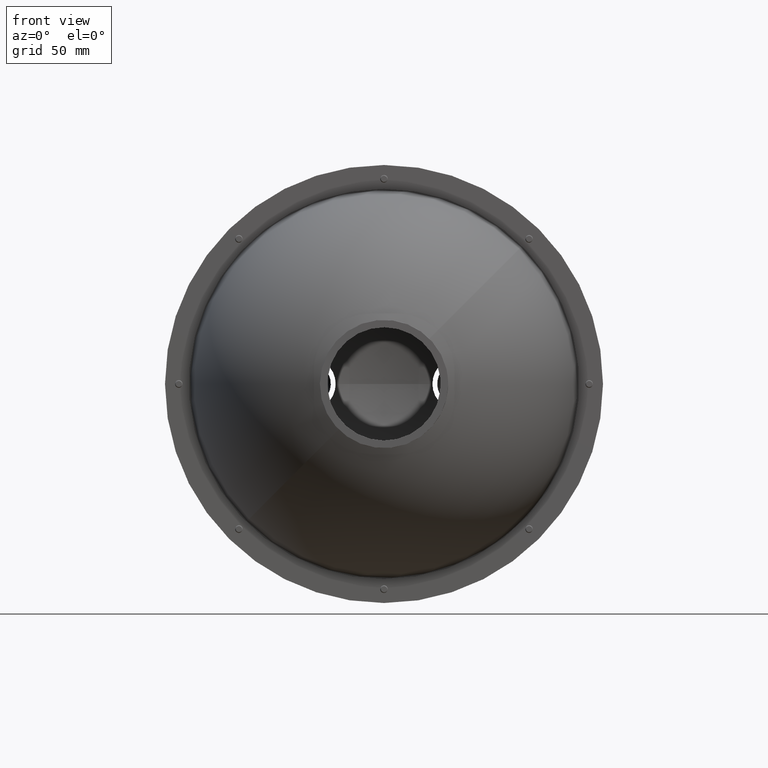
[diagram: clean part render]
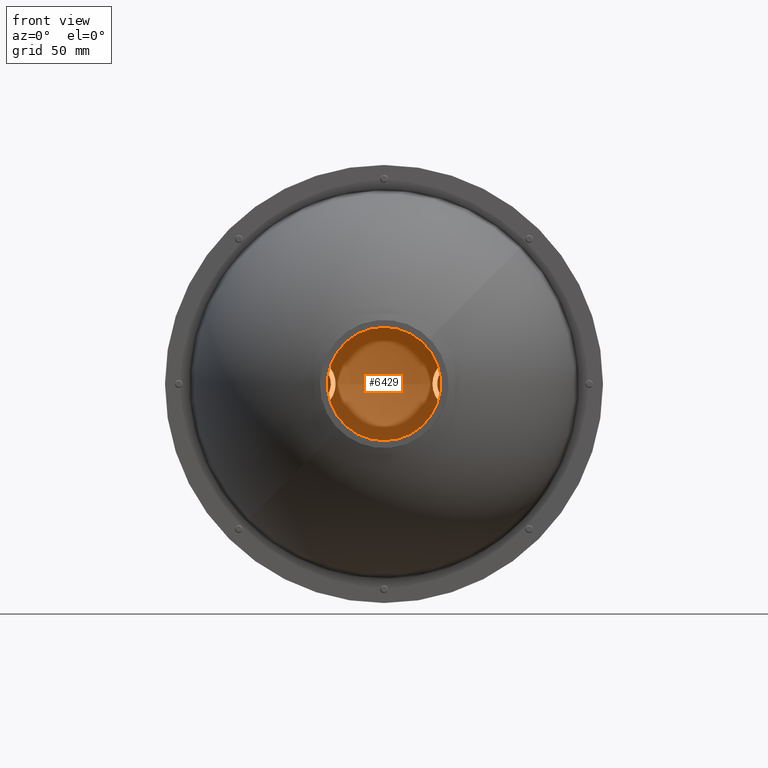
[diagram: same view with one face highlighted and labeled with its STEP entity id]
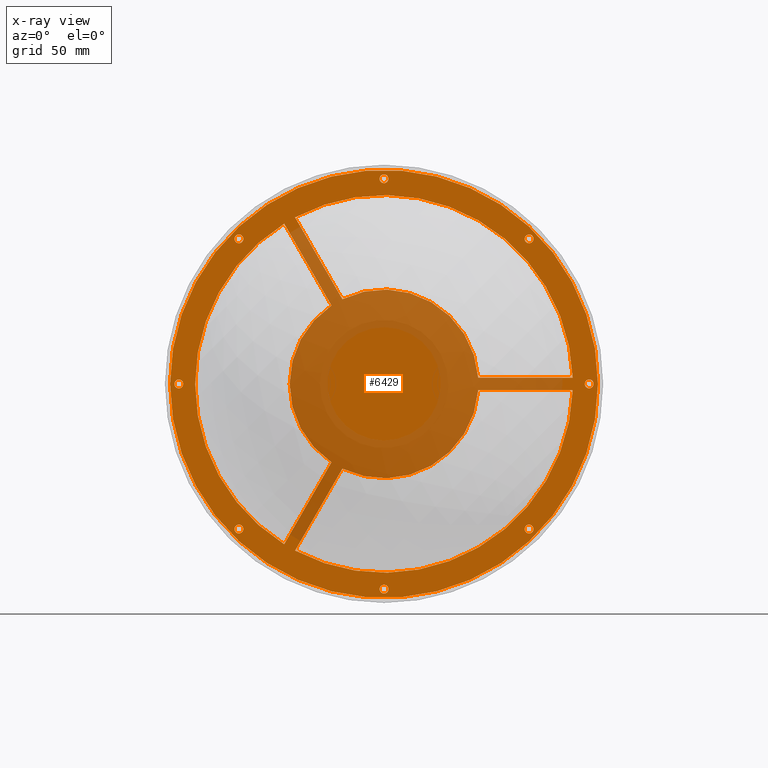
[diagram: x-ray of the same camera — body ghosted, the highlighted face saturated]
A machine part, front view. The second image highlights one B-rep face of the part: STEP entity #6429.
The next image is the same camera in x-ray: the body ghosted, the highlighted face saturated — about 33% of this face is hidden behind the body in this view.
In plain terms, the highlighted planar face has unit normal (0, 1, 0).
Its self-contained STEP definition (entity closure, byte-faithful):
#18 = EDGE_CURVE ( 'NONE', #6813, #5607, #1070, .T. ) ;
#46 = CARTESIAN_POINT ( 'NONE',  ( 6.734018949607997406, -16.21086588718419463, 81.50000000000018474 ) ) ;
#61 = VECTOR ( 'NONE', #499, 1000.000000000000000 ) ;
#71 = AXIS2_PLACEMENT_3D ( 'NONE', #5091, #878, #2150 ) ;
#92 = EDGE_LOOP ( 'NONE', ( #4031, #3357, #5070, #7390 ) ) ;
#113 = CIRCLE ( 'NONE', #3151, 37.50000000000000711 ) ;
#130 = CARTESIAN_POINT ( 'NONE',  ( 6.734018949609323457, -16.21086588718419463, -81.49999999999982947 ) ) ;
#186 = CIRCLE ( 'NONE', #6909, 37.50000000000000711 ) ;
#188 = EDGE_CURVE ( 'NONE', #3073, #5616, #4512, .T. ) ;
#222 = EDGE_CURVE ( 'NONE', #4713, #4982, #5898, .T. ) ;
#255 = DIRECTION ( 'NONE',  ( 0.000000000000000000, 1.000000000000000000, 0.000000000000000000 ) ) ;
#261 = DIRECTION ( 'NONE',  ( 0.000000000000000000, 1.000000000000000000, 0.000000000000000000 ) ) ;
#269 = CARTESIAN_POINT ( 'NONE',  ( 8.484018949608376658, -16.21086588718419463, 1.907001732220147899E-13 ) ) ;
#273 = DIRECTION ( 'NONE',  ( -1.000000000000000000, 0.000000000000000000, -3.965082230804126670E-15 ) ) ;
#289 = DIRECTION ( 'NONE',  ( 0.000000000000000000, 1.000000000000000000, 0.000000000000000000 ) ) ;
#295 = ORIENTED_EDGE ( 'NONE', *, *, #18, .F. ) ;
#296 = CIRCLE ( 'NONE', #7658, 1.750000000000001554 ) ;
#385 = VERTEX_POINT ( 'NONE', #3977 ) ;
#387 = CARTESIAN_POINT ( 'NONE',  ( 83.44234070243314250, -16.21086588718419463, -2.499999999999470202 ) ) ;
#499 = DIRECTION ( 'NONE',  ( 0.5000000000000002220, 0.000000000000000000, 0.8660254037844384856 ) ) ;
#534 = FACE_BOUND ( 'NONE', #92, .T. ) ;
#578 = CARTESIAN_POINT ( 'NONE',  ( -26.83007841734290011, -16.21086588718419463, -66.16581086299375158 ) ) ;
#581 = CARTESIAN_POINT ( 'NONE',  ( 83.44234070243311407, -16.21086588718419463, 2.500000000000550227 ) ) ;
#602 = VERTEX_POINT ( 'NONE', #7342 ) ;
#633 = DIRECTION ( 'NONE',  ( 0.000000000000000000, 1.000000000000000000, 0.000000000000000000 ) ) ;
#641 = DIRECTION ( 'NONE',  ( 0.000000000000000000, 1.000000000000000000, 0.000000000000000000 ) ) ;
#723 = DIRECTION ( 'NONE',  ( 0.000000000000000000, 1.000000000000000000, 0.000000000000000000 ) ) ;
#726 = EDGE_CURVE ( 'NONE', #2255, #3367, #3869, .T. ) ;
#735 = DIRECTION ( 'NONE',  ( 0.000000000000000000, 1.000000000000000000, 0.000000000000000000 ) ) ;
#747 = VECTOR ( 'NONE', #4028, 1000.000000000000000 ) ;
#760 = EDGE_LOOP ( 'NONE', ( #2797, #7001 ) ) ;
#800 = DIRECTION ( 'NONE',  ( 0.000000000000000000, 1.000000000000000000, 0.000000000000000000 ) ) ;
#840 = CARTESIAN_POINT ( 'NONE',  ( -74.76598105039163045, -16.21086588718419463, -4.800802837485973597E-13 ) ) ;
#853 = LINE ( 'NONE', #5100, #6987 ) ;
#878 = DIRECTION ( 'NONE',  ( 0.000000000000000000, 1.000000000000000000, 0.000000000000000000 ) ) ;
#879 = VERTEX_POINT ( 'NONE', #4657 ) ;
#885 = ORIENTED_EDGE ( 'NONE', *, *, #4175, .F. ) ;
#914 = CARTESIAN_POINT ( 'NONE',  ( -49.14518371709562672, -16.21086588718419463, 57.62920266670342784 ) ) ;
#917 = AXIS2_PLACEMENT_3D ( 'NONE', #1400, #800, #3235 ) ;
#942 = CARTESIAN_POINT ( 'NONE',  ( 8.484018949608000071, -16.21086588718419463, 81.50000000000019895 ) ) ;
#971 = VERTEX_POINT ( 'NONE', #4851 ) ;
#973 = DIRECTION ( 'NONE',  ( 0.000000000000000000, 1.000000000000000000, 0.000000000000000000 ) ) ;
#1070 = CIRCLE ( 'NONE', #7530, 1.750000000000001554 ) ;
#1091 = DIRECTION ( 'NONE',  ( 0.000000000000000000, 1.000000000000000000, 0.000000000000000000 ) ) ;
#1093 = DIRECTION ( 'NONE',  ( 0.000000000000000000, 1.000000000000000000, 0.000000000000000000 ) ) ;
#1158 = DIRECTION ( 'NONE',  ( -1.000000000000000000, 0.000000000000000000, -4.639336070329089187E-15 ) ) ;
#1175 = FACE_BOUND ( 'NONE', #3787, .T. ) ;
#1182 = VERTEX_POINT ( 'NONE', #5608 ) ;
#1223 = CARTESIAN_POINT ( 'NONE',  ( 88.23401894960836955, -16.21086588718419463, 1.414354412177905895E-12 ) ) ;
#1224 = FACE_BOUND ( 'NONE', #5647, .T. ) ;
#1272 = DIRECTION ( 'NONE',  ( -1.000000000000000000, 0.000000000000000000, -4.639336070329083665E-15 ) ) ;
#1280 = CARTESIAN_POINT ( 'NONE',  ( -47.39518371709466749, -16.21086588718419463, -57.62920266670402469 ) ) ;
#1294 = DIRECTION ( 'NONE',  ( 0.000000000000000000, 1.000000000000000000, 0.000000000000000000 ) ) ;
#1321 = VERTEX_POINT ( 'NONE', #387 ) ;
#1400 = CARTESIAN_POINT ( 'NONE',  ( -49.14518371709466749, -16.21086588718419463, -57.62920266670403180 ) ) ;
#1489 = DIRECTION ( 'NONE',  ( 0.000000000000000000, 1.000000000000000000, 0.000000000000000000 ) ) ;
#1524 = ORIENTED_EDGE ( 'NONE', *, *, #3004, .F. ) ;
#1612 = VERTEX_POINT ( 'NONE', #5678 ) ;
#1614 = DIRECTION ( 'NONE',  ( -1.000000000000000000, 0.000000000000000000, -4.639336070329089187E-15 ) ) ;
#1619 = CARTESIAN_POINT ( 'NONE',  ( -76.51598105039164466, -16.21086588718419463, -1.932338949632054194E-13 ) ) ;
#1689 = CIRCLE ( 'NONE', #3220, 1.750000000000001554 ) ;
#1707 = AXIS2_PLACEMENT_3D ( 'NONE', #4597, #2250, #6501 ) ;
#1735 = CARTESIAN_POINT ( 'NONE',  ( 8.484018949608376658, -16.21086588718419463, 1.907001732220147899E-13 ) ) ;
#1743 = LINE ( 'NONE', #5912, #4375 ) ;
#1790 = EDGE_CURVE ( 'NONE', #971, #5080, #7108, .T. ) ;
#1819 = FACE_BOUND ( 'NONE', #6642, .T. ) ;
#1827 = DIRECTION ( 'NONE',  ( 0.000000000000000000, 1.000000000000000000, 0.000000000000000000 ) ) ;
#1950 = CARTESIAN_POINT ( 'NONE',  ( 10.23401894960800007, -16.21086588718419463, 81.50000000000021316 ) ) ;
#1977 = ORIENTED_EDGE ( 'NONE', *, *, #7460, .F. ) ;
#2015 = DIRECTION ( 'NONE',  ( -1.000000000000000000, 0.000000000000000000, -4.639336070329089976E-15 ) ) ;
#2025 = EDGE_CURVE ( 'NONE', #3962, #3809, #6216, .T. ) ;
#2049 = DIRECTION ( 'NONE',  ( 1.000000000000000000, 0.000000000000000000, 4.644329535057726829E-15 ) ) ;
#2104 = CIRCLE ( 'NONE', #6293, 1.750000000000001554 ) ;
#2132 = AXIS2_PLACEMENT_3D ( 'NONE', #4284, #1294, #2530 ) ;
#2135 = CARTESIAN_POINT ( 'NONE',  ( 10.39408192135185338, -16.21086588718419463, -8.308326112715604950 ) ) ;
#2150 = DIRECTION ( 'NONE',  ( -1.000000000000000000, 0.000000000000000000, -4.639336070329089187E-15 ) ) ;
#2156 = CARTESIAN_POINT ( 'NONE',  ( 8.484018949609325233, -16.21086588718419463, -81.49999999999981526 ) ) ;
#2198 = AXIS2_PLACEMENT_3D ( 'NONE', #2156, #289, #3354 ) ;
#2208 = CARTESIAN_POINT ( 'NONE',  ( -50.89518371709467459, -16.21086588718419463, -57.62920266670403890 ) ) ;
#2227 = EDGE_CURVE ( 'NONE', #1182, #5616, #853, .T. ) ;
#2228 = VERTEX_POINT ( 'NONE', #3206 ) ;
#2250 = DIRECTION ( 'NONE',  ( 0.000000000000000000, 1.000000000000000000, 0.000000000000000000 ) ) ;
#2255 = VERTEX_POINT ( 'NONE', #3315 ) ;
#2313 = EDGE_CURVE ( 'NONE', #4982, #4713, #4956, .T. ) ;
#2340 = CARTESIAN_POINT ( 'NONE',  ( -73.01598105039163045, -16.21086588718419463, -4.719614456255214376E-13 ) ) ;
#2457 = EDGE_CURVE ( 'NONE', #1612, #602, #2933, .T. ) ;
#2510 = EDGE_CURVE ( 'NONE', #5681, #6565, #3314, .T. ) ;
#2530 = DIRECTION ( 'NONE',  ( -1.000000000000000000, 0.000000000000000000, -3.965082230804126670E-15 ) ) ;
#2682 = CARTESIAN_POINT ( 'NONE',  ( -49.14518371709466749, -16.21086588718419463, -57.62920266670403180 ) ) ;
#2698 = VERTEX_POINT ( 'NONE', #5579 ) ;
#2722 = CIRCLE ( 'NONE', #1707, 1.750000000000001554 ) ;
#2797 = ORIENTED_EDGE ( 'NONE', *, *, #4699, .F. ) ;
#2829 = ORIENTED_EDGE ( 'NONE', *, *, #6578, .F. ) ;
#2849 = AXIS2_PLACEMENT_3D ( 'NONE', #1735, #1093, #2919 ) ;
#2853 = DIRECTION ( 'NONE',  ( 0.4999999999999957812, 0.000000000000000000, -0.8660254037844411501 ) ) ;
#2919 = DIRECTION ( 'NONE',  ( -1.000000000000000000, 0.000000000000000000, -4.639336070329089187E-15 ) ) ;
#2933 = CIRCLE ( 'NONE', #6478, 75.00000000000001421 ) ;
#2954 = EDGE_LOOP ( 'NONE', ( #3933, #295 ) ) ;
#3004 = EDGE_CURVE ( 'NONE', #3411, #2228, #4593, .T. ) ;
#3009 = FACE_BOUND ( 'NONE', #760, .T. ) ;
#3012 = ORIENTED_EDGE ( 'NONE', *, *, #2510, .F. ) ;
#3046 = FACE_BOUND ( 'NONE', #6827, .T. ) ;
#3073 = VERTEX_POINT ( 'NONE', #7670 ) ;
#3110 = ORIENTED_EDGE ( 'NONE', *, *, #6472, .F. ) ;
#3114 = CIRCLE ( 'NONE', #7299, 1.750000000000001554 ) ;
#3115 = AXIS2_PLACEMENT_3D ( 'NONE', #6017, #735, #7403 ) ;
#3151 = AXIS2_PLACEMENT_3D ( 'NONE', #6677, #723, #1158 ) ;
#3170 = EDGE_LOOP ( 'NONE', ( #3193, #2829 ) ) ;
#3193 = ORIENTED_EDGE ( 'NONE', *, *, #2025, .F. ) ;
#3206 = CARTESIAN_POINT ( 'NONE',  ( 64.36322161631281347, -16.21086588718419463, -57.62920266670266756 ) ) ;
#3219 = VERTEX_POINT ( 'NONE', #1950 ) ;
#3220 = AXIS2_PLACEMENT_3D ( 'NONE', #942, #3261, #5682 ) ;
#3235 = DIRECTION ( 'NONE',  ( -1.000000000000000000, 0.000000000000000000, -3.965082230804126670E-15 ) ) ;
#3261 = DIRECTION ( 'NONE',  ( 0.000000000000000000, 1.000000000000000000, 0.000000000000000000 ) ) ;
#3314 = CIRCLE ( 'NONE', #3695, 1.750000000000001554 ) ;
#3315 = CARTESIAN_POINT ( 'NONE',  ( -12.38933149372243747, -16.21086588718419463, -31.15370349203913491 ) ) ;
#3354 = DIRECTION ( 'NONE',  ( -1.000000000000000000, 0.000000000000000000, -7.930164461608253340E-15 ) ) ;
#3357 = ORIENTED_EDGE ( 'NONE', *, *, #4545, .T. ) ;
#3367 = VERTEX_POINT ( 'NONE', #4533 ) ;
#3377 = DIRECTION ( 'NONE',  ( 0.000000000000000000, 1.000000000000000000, 0.000000000000000000 ) ) ;
#3411 = VERTEX_POINT ( 'NONE', #4762 ) ;
#3486 = EDGE_CURVE ( 'NONE', #1612, #2255, #6423, .T. ) ;
#3487 = CARTESIAN_POINT ( 'NONE',  ( 8.484018949609325233, -16.21086588718419463, -81.49999999999981526 ) ) ;
#3592 = CARTESIAN_POINT ( 'NONE',  ( 66.11322161631102290, -16.21086588718419463, 57.62920266670478497 ) ) ;
#3634 = ORIENTED_EDGE ( 'NONE', *, *, #726, .T. ) ;
#3695 = AXIS2_PLACEMENT_3D ( 'NONE', #3592, #4228, #5459 ) ;
#3739 = AXIS2_PLACEMENT_3D ( 'NONE', #4712, #5985, #7066 ) ;
#3769 = ORIENTED_EDGE ( 'NONE', *, *, #6052, .T. ) ;
#3787 = EDGE_LOOP ( 'NONE', ( #3769, #6786, #885, #6553 ) ) ;
#3801 = EDGE_LOOP ( 'NONE', ( #1977, #4089 ) ) ;
#3809 = VERTEX_POINT ( 'NONE', #7132 ) ;
#3820 = ORIENTED_EDGE ( 'NONE', *, *, #2457, .F. ) ;
#3869 = CIRCLE ( 'NONE', #6649, 37.50000000000000711 ) ;
#3886 = CARTESIAN_POINT ( 'NONE',  ( 8.484018949608376658, -16.21086588718419463, 1.907001732220147899E-13 ) ) ;
#3933 = ORIENTED_EDGE ( 'NONE', *, *, #6887, .F. ) ;
#3947 = AXIS2_PLACEMENT_3D ( 'NONE', #3886, #255, #2015 ) ;
#3950 = VERTEX_POINT ( 'NONE', #578 ) ;
#3962 = VERTEX_POINT ( 'NONE', #130 ) ;
#3977 = CARTESIAN_POINT ( 'NONE',  ( -50.89518371709562672, -16.21086588718419463, 57.62920266670342073 ) ) ;
#4028 = DIRECTION ( 'NONE',  ( -1.000000000000000000, 0.000000000000000000, -4.394656298625892042E-15 ) ) ;
#4031 = ORIENTED_EDGE ( 'NONE', *, *, #7502, .T. ) ;
#4079 = FACE_BOUND ( 'NONE', #3170, .T. ) ;
#4089 = ORIENTED_EDGE ( 'NONE', *, *, #6870, .F. ) ;
#4111 = EDGE_CURVE ( 'NONE', #385, #5239, #2104, .T. ) ;
#4175 = EDGE_CURVE ( 'NONE', #1321, #3950, #5271, .T. ) ;
#4228 = DIRECTION ( 'NONE',  ( 0.000000000000000000, 1.000000000000000000, 0.000000000000000000 ) ) ;
#4238 = CARTESIAN_POINT ( 'NONE',  ( -71.26598105039163045, -16.21086588718419463, -4.636282943125948364E-13 ) ) ;
#4284 = CARTESIAN_POINT ( 'NONE',  ( 66.11322161631281347, -16.21086588718419463, -57.62920266670266045 ) ) ;
#4375 = VECTOR ( 'NONE', #2853, 1000.000000000000114 ) ;
#4446 = ORIENTED_EDGE ( 'NONE', *, *, #3486, .T. ) ;
#4475 = AXIS2_PLACEMENT_3D ( 'NONE', #6556, #5880, #4771 ) ;
#4476 = ORIENTED_EDGE ( 'NONE', *, *, #4932, .T. ) ;
#4484 = DIRECTION ( 'NONE',  ( -1.000000000000000000, 0.000000000000000000, -3.965082230804126670E-15 ) ) ;
#4512 = CIRCLE ( 'NONE', #2849, 75.00000000000001421 ) ;
#4528 = LINE ( 'NONE', #2135, #6025 ) ;
#4533 = CARTESIAN_POINT ( 'NONE',  ( -12.38933149372229181, -16.21086588718419463, 31.15370349203958256 ) ) ;
#4545 = EDGE_CURVE ( 'NONE', #7364, #1182, #186, .T. ) ;
#4548 = DIRECTION ( 'NONE',  ( -0.5000000000000001110, 0.000000000000000000, -0.8660254037844387076 ) ) ;
#4560 = DIRECTION ( 'NONE',  ( -0.4999999999999959477, 0.000000000000000000, 0.8660254037844409281 ) ) ;
#4574 = DIRECTION ( 'NONE',  ( -1.000000000000000000, 0.000000000000000000, -3.965082230804126670E-15 ) ) ;
#4587 = EDGE_CURVE ( 'NONE', #5239, #385, #5259, .T. ) ;
#4593 = CIRCLE ( 'NONE', #4475, 1.750000000000001554 ) ;
#4597 = CARTESIAN_POINT ( 'NONE',  ( -73.01598105039163045, -16.21086588718419463, -4.719614456255214376E-13 ) ) ;
#4605 = CARTESIAN_POINT ( 'NONE',  ( 8.484018949608376658, -16.21086588718419463, 1.907001732220147899E-13 ) ) ;
#4657 = CARTESIAN_POINT ( 'NONE',  ( 45.90059281734780683, -16.21086588718419463, -2.499999999999635403 ) ) ;
#4682 = CARTESIAN_POINT ( 'NONE',  ( -47.39518371709562672, -16.21086588718419463, 57.62920266670343494 ) ) ;
#4699 = EDGE_CURVE ( 'NONE', #5080, #971, #7164, .T. ) ;
#4712 = CARTESIAN_POINT ( 'NONE',  ( 89.98401894960838376, -16.21086588718419463, 1.422473250300981817E-12 ) ) ;
#4713 = VERTEX_POINT ( 'NONE', #5313 ) ;
#4762 = CARTESIAN_POINT ( 'NONE',  ( 67.86322161631282768, -16.21086588718419463, -57.62920266670265335 ) ) ;
#4767 = DIRECTION ( 'NONE',  ( -1.000000000000000000, 0.000000000000000000, -4.639336070329083665E-15 ) ) ;
#4771 = DIRECTION ( 'NONE',  ( -1.000000000000000000, 0.000000000000000000, -3.965082230804126670E-15 ) ) ;
#4811 = VERTEX_POINT ( 'NONE', #840 ) ;
#4851 = CARTESIAN_POINT ( 'NONE',  ( 91.73401894960838376, -16.21086588718419463, 1.430806401613908520E-12 ) ) ;
#4871 = DIRECTION ( 'NONE',  ( 0.000000000000000000, 1.000000000000000000, 0.000000000000000000 ) ) ;
#4874 = ORIENTED_EDGE ( 'NONE', *, *, #7563, .F. ) ;
#4884 = EDGE_CURVE ( 'NONE', #6565, #5681, #3114, .T. ) ;
#4899 = CARTESIAN_POINT ( 'NONE',  ( 8.484018949608000071, -16.21086588718419463, 81.50000000000019895 ) ) ;
#4932 = EDGE_CURVE ( 'NONE', #3367, #602, #4528, .T. ) ;
#4956 = CIRCLE ( 'NONE', #3947, 85.00000000000001421 ) ;
#4981 = AXIS2_PLACEMENT_3D ( 'NONE', #4899, #641, #5575 ) ;
#4982 = VERTEX_POINT ( 'NONE', #1619 ) ;
#5033 = CARTESIAN_POINT ( 'NONE',  ( 8.484018949608376658, -16.21086588718419463, 1.907001732220147899E-13 ) ) ;
#5070 = ORIENTED_EDGE ( 'NONE', *, *, #2227, .T. ) ;
#5080 = VERTEX_POINT ( 'NONE', #1223 ) ;
#5082 = CARTESIAN_POINT ( 'NONE',  ( -49.14518371709562672, -16.21086588718419463, 57.62920266670342784 ) ) ;
#5091 = CARTESIAN_POINT ( 'NONE',  ( 8.484018949608376658, -16.21086588718419463, 1.907001732220147899E-13 ) ) ;
#5100 = CARTESIAN_POINT ( 'NONE',  ( 0.3337659871991225380, -16.21086588718419463, 2.500000000000164313 ) ) ;
#5105 = CARTESIAN_POINT ( 'NONE',  ( 66.11322161631102290, -16.21086588718419463, 57.62920266670478497 ) ) ;
#5109 = EDGE_LOOP ( 'NONE', ( #6424, #5874 ) ) ;
#5191 = DIRECTION ( 'NONE',  ( 0.000000000000000000, 1.000000000000000000, 0.000000000000000000 ) ) ;
#5217 = DIRECTION ( 'NONE',  ( -1.000000000000000000, 0.000000000000000000, -3.965082230804126670E-15 ) ) ;
#5219 = EDGE_CURVE ( 'NONE', #5650, #4811, #296, .T. ) ;
#5239 = VERTEX_POINT ( 'NONE', #4682 ) ;
#5259 = CIRCLE ( 'NONE', #7529, 1.750000000000001554 ) ;
#5261 = CARTESIAN_POINT ( 'NONE',  ( 8.484018949608376658, -16.21086588718419463, 1.907001732220147899E-13 ) ) ;
#5267 = DIRECTION ( 'NONE',  ( -1.000000000000000000, 0.000000000000000000, -7.930164461608253340E-15 ) ) ;
#5271 = CIRCLE ( 'NONE', #71, 75.00000000000001421 ) ;
#5276 = DIRECTION ( 'NONE',  ( -1.000000000000000000, 0.000000000000000000, -4.639336070329089187E-15 ) ) ;
#5306 = FACE_OUTER_BOUND ( 'NONE', #5109, .T. ) ;
#5313 = CARTESIAN_POINT ( 'NONE',  ( 93.48401894960839797, -16.21086588718419463, 5.850437391999875625E-13 ) ) ;
#5320 = ORIENTED_EDGE ( 'NONE', *, *, #5219, .F. ) ;
#5446 = ORIENTED_EDGE ( 'NONE', *, *, #4884, .F. ) ;
#5459 = DIRECTION ( 'NONE',  ( -1.000000000000000000, 0.000000000000000000, -3.965082230804126670E-15 ) ) ;
#5468 = FACE_BOUND ( 'NONE', #3801, .T. ) ;
#5503 = VECTOR ( 'NONE', #4548, 999.9999999999998863 ) ;
#5559 = CIRCLE ( 'NONE', #2132, 1.750000000000001554 ) ;
#5575 = DIRECTION ( 'NONE',  ( -1.000000000000000000, 0.000000000000000000, -7.930164461608253340E-15 ) ) ;
#5579 = CARTESIAN_POINT ( 'NONE',  ( -8.059204474800234053, -16.21086588718419463, -33.65370349203915623 ) ) ;
#5607 = VERTEX_POINT ( 'NONE', #2208 ) ;
#5608 = CARTESIAN_POINT ( 'NONE',  ( 45.90059281734777841, -16.21086588718419463, 2.500000000000376144 ) ) ;
#5616 = VERTEX_POINT ( 'NONE', #581 ) ;
#5647 = EDGE_LOOP ( 'NONE', ( #4874, #5320 ) ) ;
#5650 = VERTEX_POINT ( 'NONE', #4238 ) ;
#5678 = CARTESIAN_POINT ( 'NONE',  ( -31.16020543626510886, -16.21086588718419463, -63.66581086299375158 ) ) ;
#5681 = VERTEX_POINT ( 'NONE', #7136 ) ;
#5682 = DIRECTION ( 'NONE',  ( -1.000000000000000000, 0.000000000000000000, -7.930164461608253340E-15 ) ) ;
#5711 = AXIS2_PLACEMENT_3D ( 'NONE', #6075, #633, #1272 ) ;
#5754 = CIRCLE ( 'NONE', #2198, 1.750000000000001554 ) ;
#5760 = DIRECTION ( 'NONE',  ( -1.000000000000000000, 0.000000000000000000, -4.639336070329089187E-15 ) ) ;
#5813 = CARTESIAN_POINT ( 'NONE',  ( 67.86322161631103711, -16.21086588718419463, 57.62920266670479208 ) ) ;
#5874 = ORIENTED_EDGE ( 'NONE', *, *, #2313, .T. ) ;
#5880 = DIRECTION ( 'NONE',  ( 0.000000000000000000, 1.000000000000000000, 0.000000000000000000 ) ) ;
#5898 = CIRCLE ( 'NONE', #3115, 85.00000000000001421 ) ;
#5912 = CARTESIAN_POINT ( 'NONE',  ( 14.72420894027405858, -16.21086588718419463, -5.808326112715626266 ) ) ;
#5945 = FACE_BOUND ( 'NONE', #6475, .T. ) ;
#5949 = CARTESIAN_POINT ( 'NONE',  ( 10.39408192135191200, -16.21086588718419463, 8.308326112715967326 ) ) ;
#5985 = DIRECTION ( 'NONE',  ( 0.000000000000000000, 1.000000000000000000, 0.000000000000000000 ) ) ;
#6011 = EDGE_CURVE ( 'NONE', #1321, #879, #7627, .T. ) ;
#6017 = CARTESIAN_POINT ( 'NONE',  ( 8.484018949608376658, -16.21086588718419463, 1.907001732220147899E-13 ) ) ;
#6025 = VECTOR ( 'NONE', #4560, 1000.000000000000000 ) ;
#6052 = EDGE_CURVE ( 'NONE', #879, #2698, #113, .T. ) ;
#6057 = FACE_BOUND ( 'NONE', #6749, .T. ) ;
#6075 = CARTESIAN_POINT ( 'NONE',  ( 89.98401894960838376, -16.21086588718419463, 1.422473250300981817E-12 ) ) ;
#6136 = DIRECTION ( 'NONE',  ( -1.000000000000000000, 0.000000000000000000, -4.639336070329089976E-15 ) ) ;
#6157 = VERTEX_POINT ( 'NONE', #46 ) ;
#6216 = CIRCLE ( 'NONE', #7238, 1.750000000000001554 ) ;
#6293 = AXIS2_PLACEMENT_3D ( 'NONE', #914, #1489, #4574 ) ;
#6330 = DIRECTION ( 'NONE',  ( 0.000000000000000000, 1.000000000000000000, 0.000000000000000000 ) ) ;
#6386 = DIRECTION ( 'NONE',  ( 0.000000000000000000, 1.000000000000000000, 0.000000000000000000 ) ) ;
#6423 = LINE ( 'NONE', #5949, #61 ) ;
#6424 = ORIENTED_EDGE ( 'NONE', *, *, #222, .T. ) ;
#6429 = ADVANCED_FACE ( 'NONE', ( #5945, #534, #1175, #3046, #3009, #1819, #4079, #6658, #1224, #6057, #5468, #5306 ), #7728, .T. ) ;
#6472 = EDGE_CURVE ( 'NONE', #2228, #3411, #5559, .T. ) ;
#6475 = EDGE_LOOP ( 'NONE', ( #4446, #3634, #4476, #3820 ) ) ;
#6478 = AXIS2_PLACEMENT_3D ( 'NONE', #5261, #1091, #1614 ) ;
#6501 = DIRECTION ( 'NONE',  ( -1.000000000000000000, 0.000000000000000000, -4.639336070329083665E-15 ) ) ;
#6553 = ORIENTED_EDGE ( 'NONE', *, *, #6011, .T. ) ;
#6556 = CARTESIAN_POINT ( 'NONE',  ( 66.11322161631281347, -16.21086588718419463, -57.62920266670266045 ) ) ;
#6565 = VERTEX_POINT ( 'NONE', #5813 ) ;
#6578 = EDGE_CURVE ( 'NONE', #3809, #3962, #5754, .T. ) ;
#6589 = EDGE_CURVE ( 'NONE', #2698, #3950, #6929, .T. ) ;
#6642 = EDGE_LOOP ( 'NONE', ( #3110, #1524 ) ) ;
#6649 = AXIS2_PLACEMENT_3D ( 'NONE', #269, #5191, #5276 ) ;
#6658 = FACE_BOUND ( 'NONE', #2954, .T. ) ;
#6677 = CARTESIAN_POINT ( 'NONE',  ( 8.484018949608376658, -16.21086588718419463, 1.907001732220147899E-13 ) ) ;
#6749 = EDGE_LOOP ( 'NONE', ( #7782, #7139 ) ) ;
#6786 = ORIENTED_EDGE ( 'NONE', *, *, #6589, .T. ) ;
#6813 = VERTEX_POINT ( 'NONE', #1280 ) ;
#6827 = EDGE_LOOP ( 'NONE', ( #3012, #5446 ) ) ;
#6870 = EDGE_CURVE ( 'NONE', #3219, #6157, #6895, .T. ) ;
#6887 = EDGE_CURVE ( 'NONE', #5607, #6813, #7137, .T. ) ;
#6895 = CIRCLE ( 'NONE', #4981, 1.750000000000001554 ) ;
#6909 = AXIS2_PLACEMENT_3D ( 'NONE', #4605, #6386, #5760 ) ;
#6929 = LINE ( 'NONE', #6999, #5503 ) ;
#6987 = VECTOR ( 'NONE', #2049, 1000.000000000000000 ) ;
#6999 = CARTESIAN_POINT ( 'NONE',  ( 14.72420894027410831, -16.21086588718419463, 5.808326112715967326 ) ) ;
#7001 = ORIENTED_EDGE ( 'NONE', *, *, #1790, .F. ) ;
#7045 = CARTESIAN_POINT ( 'NONE',  ( 0.3337659871991468519, -16.21086588718419463, -2.499999999999835243 ) ) ;
#7066 = DIRECTION ( 'NONE',  ( -1.000000000000000000, 0.000000000000000000, -4.639336070329083665E-15 ) ) ;
#7077 = AXIS2_PLACEMENT_3D ( 'NONE', #5033, #4871, #6136 ) ;
#7108 = CIRCLE ( 'NONE', #5711, 1.750000000000001554 ) ;
#7132 = CARTESIAN_POINT ( 'NONE',  ( 10.23401894960932701, -16.21086588718419463, -81.49999999999980105 ) ) ;
#7136 = CARTESIAN_POINT ( 'NONE',  ( 64.36322161631102290, -16.21086588718419463, 57.62920266670477787 ) ) ;
#7137 = CIRCLE ( 'NONE', #917, 1.750000000000001554 ) ;
#7139 = ORIENTED_EDGE ( 'NONE', *, *, #4587, .F. ) ;
#7164 = CIRCLE ( 'NONE', #3739, 1.750000000000001554 ) ;
#7238 = AXIS2_PLACEMENT_3D ( 'NONE', #3487, #973, #5267 ) ;
#7243 = CARTESIAN_POINT ( 'NONE',  ( -8.059204474800077733, -16.21086588718419463, 33.65370349203954703 ) ) ;
#7299 = AXIS2_PLACEMENT_3D ( 'NONE', #5105, #261, #4484 ) ;
#7342 = CARTESIAN_POINT ( 'NONE',  ( -31.16020543626481754, -16.21086588718419463, 63.66581086299432002 ) ) ;
#7364 = VERTEX_POINT ( 'NONE', #7243 ) ;
#7390 = ORIENTED_EDGE ( 'NONE', *, *, #188, .F. ) ;
#7403 = DIRECTION ( 'NONE',  ( -1.000000000000000000, 0.000000000000000000, -4.639336070329089976E-15 ) ) ;
#7460 = EDGE_CURVE ( 'NONE', #6157, #3219, #1689, .T. ) ;
#7502 = EDGE_CURVE ( 'NONE', #3073, #7364, #1743, .T. ) ;
#7529 = AXIS2_PLACEMENT_3D ( 'NONE', #5082, #3377, #273 ) ;
#7530 = AXIS2_PLACEMENT_3D ( 'NONE', #2682, #6330, #5217 ) ;
#7563 = EDGE_CURVE ( 'NONE', #4811, #5650, #2722, .T. ) ;
#7627 = LINE ( 'NONE', #7045, #747 ) ;
#7658 = AXIS2_PLACEMENT_3D ( 'NONE', #2340, #1827, #4767 ) ;
#7670 = CARTESIAN_POINT ( 'NONE',  ( -26.83007841734258747, -16.21086588718419463, 66.16581086299429160 ) ) ;
#7728 = PLANE ( 'NONE',  #7077 ) ;
#7782 = ORIENTED_EDGE ( 'NONE', *, *, #4111, .F. ) ;